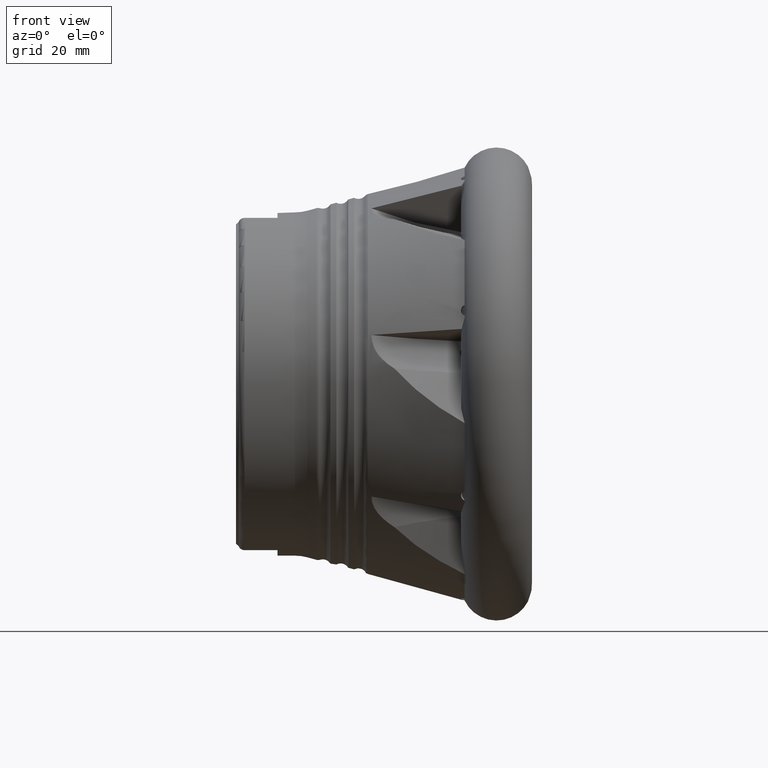
[diagram: clean part render]
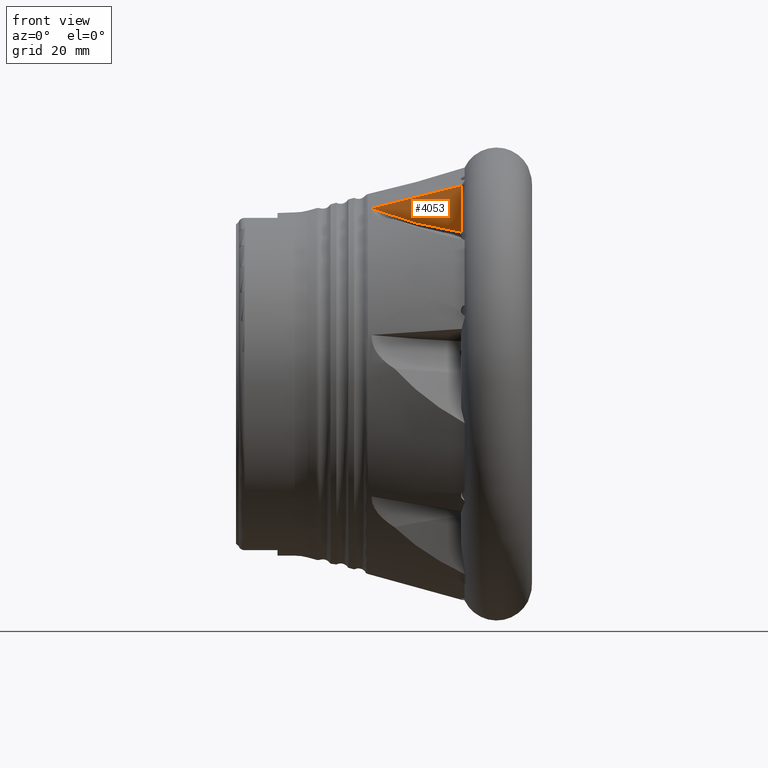
[diagram: same view with one face highlighted and labeled with its STEP entity id]
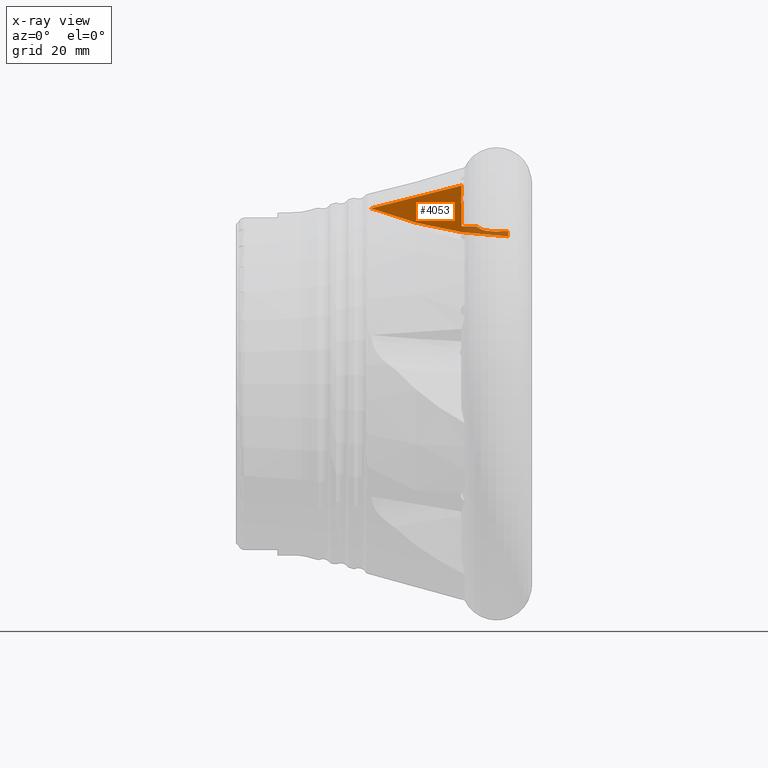
[diagram: x-ray of the same camera — body ghosted, the highlighted face saturated]
A machine part, front view. The second image highlights one B-rep face of the part: STEP entity #4053.
The next image is the same camera in x-ray: the body ghosted, the highlighted face saturated — about 9% of this face is hidden behind the body in this view.
In plain terms, the highlighted planar face has unit normal (0, 0.9135, 0.4067).
Its self-contained STEP definition (entity closure, byte-faithful):
#24 = EDGE_CURVE ( 'NONE', #3692, #2610, #3530, .T. ) ;
#27 = VECTOR ( 'NONE', #6580, 1000.000000000000100 ) ;
#37 = ORIENTED_EDGE ( 'NONE', *, *, #831, .F. ) ;
#38 = CARTESIAN_POINT ( 'NONE',  ( -5.772510203143357700, -10.95570494313068700, 25.83621285410324800 ) ) ;
#67 = CARTESIAN_POINT ( 'NONE',  ( -10.53275845334866600, -12.91642754550899700, 30.24006792247017100 ) ) ;
#79 = CARTESIAN_POINT ( 'NONE',  ( -5.002528977298831900, -10.91416401165717400, 25.74291039439151200 ) ) ;
#145 = VERTEX_POINT ( 'NONE', #3398 ) ;
#182 = B_SPLINE_CURVE_WITH_KNOTS ( 'NONE', 3,
 ( #1096, #5686, #6208, #3125 ),
 .UNSPECIFIED., .F., .F.,
 ( 4, 4 ),
 ( 0.001388644720501521400, 0.01719045414241987500 ),
 .UNSPECIFIED. ) ;
#216 = EDGE_CURVE ( 'NONE', #2610, #4213, #5243, .T. ) ;
#396 = CARTESIAN_POINT ( 'NONE',  ( -8.022439109956183100, -11.30686446221683100, 26.62493004747726700 ) ) ;
#480 = CARTESIAN_POINT ( 'NONE',  ( -2.684159021131009600, 5.192837229400479900, -10.43400671034540700 ) ) ;
#486 = CARTESIAN_POINT ( 'NONE',  ( -5.772510203143357700, -10.95570494313068900, 25.83621285410324800 ) ) ;
#493 = CIRCLE ( 'NONE', #4799, 65.73467639423689900 ) ;
#572 = CARTESIAN_POINT ( 'NONE',  ( -5.732449825829705000, -10.95570494313188800, 25.83621285410595500 ) ) ;
#578 = CARTESIAN_POINT ( 'NONE',  ( -3.528319268227713600, -10.95570494312060600, 25.83621285411136600 ) ) ;
#657 = LINE ( 'NONE', #480, #27 ) ;
#684 = ORIENTED_EDGE ( 'NONE', *, *, #216, .F. ) ;
#831 = EDGE_CURVE ( 'NONE', #5919, #6101, #657, .T. ) ;
#943 = ORIENTED_EDGE ( 'NONE', *, *, #3409, .F. ) ;
#978 = CARTESIAN_POINT ( 'NONE',  ( -5.772510203143357700, -10.95570494313068900, 25.83621285410324800 ) ) ;
#1005 = DIRECTION ( 'NONE',  ( 1.000000000000000000, 0.0000000000000000000, 0.0000000000000000000 ) ) ;
#1084 = CARTESIAN_POINT ( 'NONE',  ( -10.63055623765579200, -13.50012836724246900, 31.55108143304170200 ) ) ;
#1096 = CARTESIAN_POINT ( 'NONE',  ( -10.53275845334866600, -14.37276681220284800, 33.51105947074532300 ) ) ;
#1193 = EDGE_CURVE ( 'NONE', #1555, #6364, #2478, .T. ) ;
#1244 = EDGE_CURVE ( 'NONE', #145, #3517, #182, .T. ) ;
#1387 = CARTESIAN_POINT ( 'NONE',  ( -10.53275845334866600, -16.17766173314111500, 37.56491983620566100 ) ) ;
#1520 = CARTESIAN_POINT ( 'NONE',  ( 9.807638226112164400, -11.30686446221683500, 26.62493004747726700 ) ) ;
#1533 = DIRECTION ( 'NONE',  ( 0.0000000000000000000, 0.4067366430757949900, -0.9135454576426032000 ) ) ;
#1555 = VERTEX_POINT ( 'NONE', #578 ) ;
#1607 = CARTESIAN_POINT ( 'NONE',  ( -10.53275845334866600, -13.79340851186401000, 32.20979942291761200 ) ) ;
#1682 = CARTESIAN_POINT ( 'NONE',  ( -10.53275845334866600, -11.30686446221683500, 26.62493004747726700 ) ) ;
#1686 = CARTESIAN_POINT ( 'NONE',  ( -10.53275845334866600, -16.17766173314111500, 37.56491983620566100 ) ) ;
#1803 = VECTOR ( 'NONE', #5400, 1000.000000000000000 ) ;
#1819 = CARTESIAN_POINT ( 'NONE',  ( 8.049910237884031900E-015, -37.26181824449075500, 84.92071070744975700 ) ) ;
#2011 = LINE ( 'NONE', #1387, #1803 ) ;
#2288 = EDGE_LOOP ( 'NONE', ( #6558, #3185, #6465, #684, #3096, #3512, #6393, #943, #6574, #4090, #37 ) ) ;
#2295 = DIRECTION ( 'NONE',  ( 0.0000000000000000000, 0.4067366430757948200, -0.9135454576426033100 ) ) ;
#2323 = B_SPLINE_CURVE_WITH_KNOTS ( 'NONE', 3,
 ( #67, #5064, #4058, #1084, #4571, #1607 ),
 .UNSPECIFIED., .F., .F.,
 ( 4, 2, 4 ),
 ( 0.01027345211759841100, 0.01135199778914048300, 0.01243054346068256600 ),
 .UNSPECIFIED. ) ;
#2390 = VERTEX_POINT ( 'NONE', #5125 ) ;
#2436 = EDGE_CURVE ( 'NONE', #3517, #6101, #493, .T. ) ;
#2478 = B_SPLINE_CURVE_WITH_KNOTS ( 'NONE', 3,
 ( #3046, #6122, #2546, #79, #3566, #572 ),
 .UNSPECIFIED., .F., .F.,
 ( 4, 2, 4 ),
 ( 0.0008691620820939922300, 0.001972723374241060900, 0.003076284666388129900 ),
 .UNSPECIFIED. ) ;
#2546 = CARTESIAN_POINT ( 'NONE',  ( -4.257103024530382000, -10.91419274602885500, 25.74297493284697700 ) ) ;
#2610 = VERTEX_POINT ( 'NONE', #396 ) ;
#2649 = LINE ( 'NONE', #1686, #5209 ) ;
#2750 = CARTESIAN_POINT ( 'NONE',  ( -5.732449825829705000, -10.95570494313188800, 25.83621285410595500 ) ) ;
#2837 = LINE ( 'NONE', #486, #4494 ) ;
#2849 = AXIS2_PLACEMENT_3D ( 'NONE', #6290, #4718, #4225 ) ;
#3017 = EDGE_CURVE ( 'NONE', #1555, #5919, #2837, .T. ) ;
#3046 = CARTESIAN_POINT ( 'NONE',  ( -3.528319268227713600, -10.95570494312060600, 25.83621285411136600 ) ) ;
#3096 = ORIENTED_EDGE ( 'NONE', *, *, #24, .F. ) ;
#3125 = CARTESIAN_POINT ( 'NONE',  ( -25.76633205917311600, -12.66469487789353600, 29.67466709381284700 ) ) ;
#3185 = ORIENTED_EDGE ( 'NONE', *, *, #1193, .T. ) ;
#3398 = CARTESIAN_POINT ( 'NONE',  ( -10.53275845334866600, -14.37276681220284800, 33.51105947074532300 ) ) ;
#3409 = EDGE_CURVE ( 'NONE', #145, #2390, #2011, .T. ) ;
#3512 = ORIENTED_EDGE ( 'NONE', *, *, #5343, .F. ) ;
#3517 = VERTEX_POINT ( 'NONE', #4008 ) ;
#3530 = LINE ( 'NONE', #1520, #3929 ) ;
#3566 = CARTESIAN_POINT ( 'NONE',  ( -5.370841369347076900, -10.92821781827637100, 25.77447576087156400 ) ) ;
#3575 = VERTEX_POINT ( 'NONE', #5140 ) ;
#3692 = VERTEX_POINT ( 'NONE', #1682 ) ;
#3708 = PLANE ( 'NONE',  #2849 ) ;
#3929 = VECTOR ( 'NONE', #1005, 1000.000000000000000 ) ;
#3983 = DIRECTION ( 'NONE',  ( 1.000000000000000000, -1.497636961398250600E-016, 3.363747689258694500E-016 ) ) ;
#4008 = CARTESIAN_POINT ( 'NONE',  ( -25.76633205917311600, -12.66469487789353600, 29.67466709381284700 ) ) ;
#4053 = ADVANCED_FACE ( 'NONE', ( #4989 ), #3708, .F. ) ;
#4058 = CARTESIAN_POINT ( 'NONE',  ( -10.63021147954628600, -13.20737235474720400, 30.89354066319575400 ) ) ;
#4090 = ORIENTED_EDGE ( 'NONE', *, *, #2436, .T. ) ;
#4213 = VERTEX_POINT ( 'NONE', #38 ) ;
#4225 = DIRECTION ( 'NONE',  ( 0.0000000000000000000, -0.4067366430757947700, 0.9135454576426033100 ) ) ;
#4494 = VECTOR ( 'NONE', #3983, 1000.000000000000000 ) ;
#4571 = CARTESIAN_POINT ( 'NONE',  ( -10.59779873603671500, -13.64854236496076800, 31.88442472967915400 ) ) ;
#4718 = DIRECTION ( 'NONE',  ( 0.0000000000000000000, 0.9135454576426033100, 0.4067366430757947700 ) ) ;
#4799 = AXIS2_PLACEMENT_3D ( 'NONE', #1819, #5316, #2295 ) ;
#4885 = VECTOR ( 'NONE', #6020, 1000.000000000000000 ) ;
#4989 = FACE_OUTER_BOUND ( 'NONE', #2288, .T. ) ;
#5019 = DIRECTION ( 'NONE',  ( 0.0000000000000000000, -0.9135454576426033100, -0.4067366430757947700 ) ) ;
#5033 = AXIS2_PLACEMENT_3D ( 'NONE', #5548, #5019, #1533 ) ;
#5064 = CARTESIAN_POINT ( 'NONE',  ( -10.59793229968659200, -13.06159318465777200, 30.56611528630564600 ) ) ;
#5105 = EDGE_CURVE ( 'NONE', #4213, #6364, #5942, .T. ) ;
#5125 = CARTESIAN_POINT ( 'NONE',  ( -10.53275845334866600, -13.79340851186401000, 32.20979942291761200 ) ) ;
#5140 = CARTESIAN_POINT ( 'NONE',  ( -10.53275845334866600, -12.91642754550899700, 30.24006792247017100 ) ) ;
#5209 = VECTOR ( 'NONE', #5700, 1000.000000000000000 ) ;
#5229 = EDGE_CURVE ( 'NONE', #3575, #2390, #2323, .T. ) ;
#5243 = CIRCLE ( 'NONE', #5033, 3.363358453348661100 ) ;
#5316 = DIRECTION ( 'NONE',  ( -0.0000000000000000000, -0.9135454576426034200, -0.4067366430757948200 ) ) ;
#5318 = CARTESIAN_POINT ( 'NONE',  ( -2.684159021131010500, -10.54741568632687900, 24.91918016893186700 ) ) ;
#5343 = EDGE_CURVE ( 'NONE', #3575, #3692, #2649, .T. ) ;
#5400 = DIRECTION ( 'NONE',  ( 1.435621420673711300E-017, 0.4067366430757948200, -0.9135454576426033100 ) ) ;
#5451 = CARTESIAN_POINT ( 'NONE',  ( -2.684159021131011300, -10.95570494313068400, 25.83621285410325200 ) ) ;
#5548 = CARTESIAN_POINT ( 'NONE',  ( -5.772510203143357700, -12.32370606990631900, 28.90879369158376700 ) ) ;
#5686 = CARTESIAN_POINT ( 'NONE',  ( -15.61062071092971900, -13.80341597648243700, 32.23227655646416400 ) ) ;
#5700 = DIRECTION ( 'NONE',  ( 1.435621420673711300E-017, 0.4067366430757948200, -0.9135454576426033100 ) ) ;
#5919 = VERTEX_POINT ( 'NONE', #5451 ) ;
#5942 = LINE ( 'NONE', #978, #4885 ) ;
#6020 = DIRECTION ( 'NONE',  ( 1.000000000000000000, -1.497636961398250600E-016, 3.363747689258694500E-016 ) ) ;
#6101 = VERTEX_POINT ( 'NONE', #5318 ) ;
#6122 = CARTESIAN_POINT ( 'NONE',  ( -3.890008356951214700, -10.92821168913757800, 25.77446199460045100 ) ) ;
#6208 = CARTESIAN_POINT ( 'NONE',  ( -20.68847915091832200, -13.23405950799466300, 30.95348099078036700 ) ) ;
#6290 = CARTESIAN_POINT ( 'NONE',  ( -46.82801613358547100, -18.49814132058187300, 42.77680232269179300 ) ) ;
#6364 = VERTEX_POINT ( 'NONE', #2750 ) ;
#6393 = ORIENTED_EDGE ( 'NONE', *, *, #5229, .T. ) ;
#6465 = ORIENTED_EDGE ( 'NONE', *, *, #5105, .F. ) ;
#6558 = ORIENTED_EDGE ( 'NONE', *, *, #3017, .F. ) ;
#6574 = ORIENTED_EDGE ( 'NONE', *, *, #1244, .T. ) ;
#6580 = DIRECTION ( 'NONE',  ( 0.0000000000000000000, 0.4067366430757947700, -0.9135454576426033100 ) ) ;